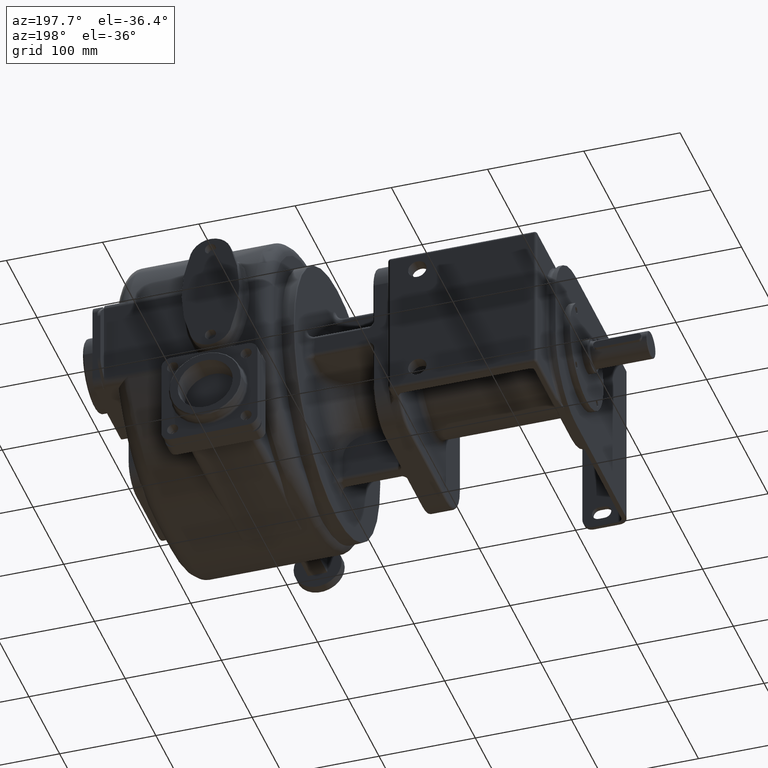
[diagram: clean part render]
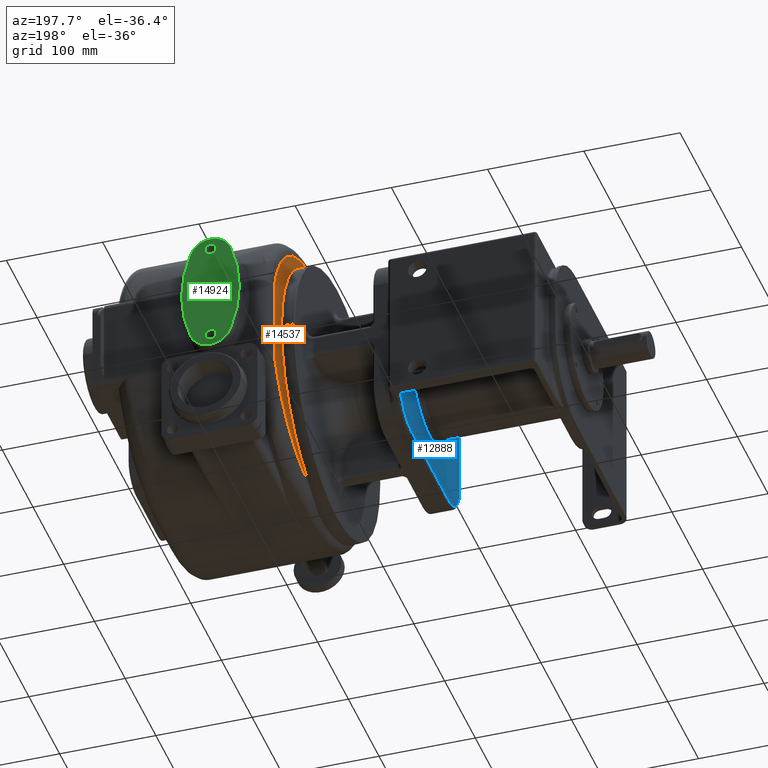
[diagram: same view with three faces highlighted in distinct colors, each labeled with its STEP entity id]
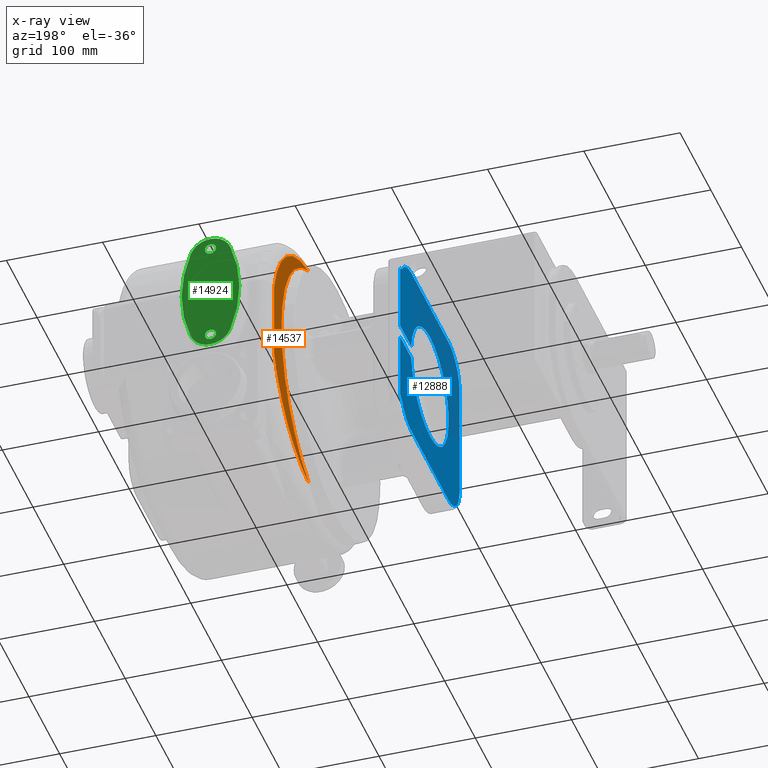
[diagram: x-ray of the same camera — body ghosted, the three highlighted faces saturated]
A machine part, auxiliary view with three faces highlighted in distinct colors.
The next image is the same camera in x-ray (body ghosted, the three faces saturated) — at least one of them is partly hidden behind the body in this view.
Their STEP definitions:

[orange] entity #14537 — the highlighted planar face has unit normal (1, 0, 0).
#2199=CARTESIAN_POINT('',(-5.5E1,1.5E2,0.E0));
#2200=DIRECTION('',(-1.E0,0.E0,0.E0));
#2201=DIRECTION('',(0.E0,3.789755434408E-1,9.254066876102E-1));
#2202=AXIS2_PLACEMENT_3D('',#2199,#2200,#2201);
#2204=CARTESIAN_POINT('',(-5.5E1,1.5E2,0.E0));
#2205=DIRECTION('',(-1.E0,0.E0,0.E0));
#2206=DIRECTION('',(0.E0,1.E0,0.E0));
#2207=AXIS2_PLACEMENT_3D('',#2204,#2205,#2206);
#2209=CARTESIAN_POINT('',(-5.5E1,1.935088238347E2,0.E0));
#2210=DIRECTION('',(-1.E0,0.E0,0.E0));
#2211=DIRECTION('',(0.E0,9.233049313065E-1,-3.840677073447E-1));
#2212=AXIS2_PLACEMENT_3D('',#2209,#2210,#2211);
#2214=DIRECTION('',(0.E0,8.685984680238E-12,-1.E0));
#2215=VECTOR('',#2214,8.177063911726E1);
#2216=CARTESIAN_POINT('',(-5.5E1,3.140000000005E2,3.164960389478E1));
#2217=LINE('',#2216,#2215);
#2218=CARTESIAN_POINT('',(-5.5E1,1.873961078411E2,0.E0));
#2219=DIRECTION('',(-1.E0,0.E0,0.E0));
#2220=DIRECTION('',(0.E0,1.200035880505E-1,9.927734579727E-1));
#2221=AXIS2_PLACEMENT_3D('',#2218,#2219,#2220);
#9249=CARTESIAN_POINT('',(-5.5E1,3.140000000005E2,3.164960389478E1));
#9250=CARTESIAN_POINT('',(-5.5E1,3.140000000012E2,-5.012103522249E1));
#9251=VERTEX_POINT('',#9249);
#9252=VERTEX_POINT('',#9250);
#9631=CARTESIAN_POINT('',(-5.5E1,2.030565760817E2,1.295569362654E2));
#9632=CARTESIAN_POINT('',(-5.5E1,2.9E2,-4.973797150321E-14));
#9633=VERTEX_POINT('',#9631);
#9634=VERTEX_POINT('',#9632);
#9635=CARTESIAN_POINT('',(-5.5E1,2.012857778968E2,-1.302680658700E2));
#9636=VERTEX_POINT('',#9635);
#14521=CARTESIAN_POINT('',(-5.5E1,1.5E2,0.E0));
#14522=DIRECTION('',(1.E0,0.E0,0.E0));
#14523=DIRECTION('',(0.E0,0.E0,1.E0));
#14524=AXIS2_PLACEMENT_3D('',#14521,#14522,#14523);
#14525=PLANE('',#14524);
#14527=ORIENTED_EDGE('',*,*,#14526,.T.);
#14528=ORIENTED_EDGE('',*,*,#14505,.T.);
#14530=ORIENTED_EDGE('',*,*,#14529,.F.);
#14532=ORIENTED_EDGE('',*,*,#14531,.F.);
#14534=ORIENTED_EDGE('',*,*,#14533,.F.);
#14535=EDGE_LOOP('',(#14527,#14528,#14530,#14532,#14534));
#14536=FACE_OUTER_BOUND('',#14535,.F.);
#14537=ADVANCED_FACE('',(#14536),#14525,.F.);
#2203=CIRCLE('',#2202,1.4E2);
#2208=CIRCLE('',#2207,1.4E2);
#2213=CIRCLE('',#2212,1.305E2);
#2222=CIRCLE('',#2221,1.305E2);
#14505=EDGE_CURVE('',#9634,#9636,#2208,.T.);
#14526=EDGE_CURVE('',#9633,#9634,#2203,.T.);
#14529=EDGE_CURVE('',#9252,#9636,#2213,.T.);
#14531=EDGE_CURVE('',#9251,#9252,#2217,.T.);
#14533=EDGE_CURVE('',#9633,#9251,#2222,.T.);

[blue] entity #12888 — the highlighted planar face has unit normal (1, 0, 0).
#1175=DIRECTION('',(-6.578854630226E-11,-1.E0,0.E0));
#1176=VECTOR('',#1175,3.640297037011E1);
#1177=CARTESIAN_POINT('',(-1.645E2,2.47E2,-7.E0));
#1178=LINE('',#1177,#1176);
#1179=DIRECTION('',(6.578854630226E-11,1.E0,0.E0));
#1180=VECTOR('',#1179,3.640297037011E1);
#1181=CARTESIAN_POINT('',(-1.645000000024E2,2.105970296299E2,7.E0));
#1182=LINE('',#1181,#1180);
#1183=DIRECTION('',(-8.555937387140E-11,0.E0,1.E0));
#1184=VECTOR('',#1183,7.035088935933E1);
#1185=CARTESIAN_POINT('',(-1.645E2,2.47E2,7.E0));
#1186=LINE('',#1185,#1184);
#1187=CARTESIAN_POINT('',(-1.645E2,2.5E2,9.E1));
#1188=DIRECTION('',(1.E0,0.E0,0.E0));
#1189=DIRECTION('',(0.E0,-8.E-1,-6.E-1));
#1190=AXIS2_PLACEMENT_3D('',#1187,#1188,#1189);
#1192=CARTESIAN_POINT('',(-1.645E2,2.1E2,6.E1));
#1193=DIRECTION('',(-1.E0,0.E0,0.E0));
#1194=DIRECTION('',(0.E0,0.E0,1.E0));
#1195=AXIS2_PLACEMENT_3D('',#1192,#1193,#1194);
#1197=DIRECTION('',(0.E0,1.E0,0.E0));
#1198=VECTOR('',#1197,1.2E2);
#1199=CARTESIAN_POINT('',(-1.645E2,9.E1,9.7E1));
#1200=LINE('',#1199,#1198);
#1201=CARTESIAN_POINT('',(-1.645E2,9.E1,6.E1));
#1202=DIRECTION('',(-1.E0,0.E0,0.E0));
#1203=DIRECTION('',(0.E0,-1.E0,0.E0));
#1204=AXIS2_PLACEMENT_3D('',#1201,#1202,#1203);
#1206=DIRECTION('',(0.E0,0.E0,1.E0));
#1207=VECTOR('',#1206,1.2E2);
#1208=CARTESIAN_POINT('',(-1.645E2,5.3E1,-6.E1));
#1209=LINE('',#1208,#1207);
#1210=CARTESIAN_POINT('',(-1.645E2,9.E1,-6.E1));
#1211=DIRECTION('',(-1.E0,0.E0,0.E0));
#1212=DIRECTION('',(0.E0,0.E0,-1.E0));
#1213=AXIS2_PLACEMENT_3D('',#1210,#1211,#1212);
#1215=DIRECTION('',(0.E0,-1.E0,0.E0));
#1216=VECTOR('',#1215,1.2E2);
#1217=CARTESIAN_POINT('',(-1.645E2,2.1E2,-9.7E1));
#1218=LINE('',#1217,#1216);
#1219=CARTESIAN_POINT('',(-1.645E2,2.1E2,-6.E1));
#1220=DIRECTION('',(-1.E0,0.E0,0.E0));
#1221=DIRECTION('',(0.E0,8.E-1,-6.E-1));
#1222=AXIS2_PLACEMENT_3D('',#1219,#1220,#1221);
#1224=CARTESIAN_POINT('',(-1.645E2,2.5E2,-9.E1));
#1225=DIRECTION('',(1.E0,0.E0,0.E0));
#1226=DIRECTION('',(0.E0,-2.307692307692E-1,9.730085108210E-1));
#1227=AXIS2_PLACEMENT_3D('',#1224,#1225,#1226);
#1229=DIRECTION('',(8.531737829603E-11,0.E0,1.E0));
#1230=VECTOR('',#1229,7.035088935933E1);
#1231=CARTESIAN_POINT('',(-1.645000000060E2,2.47E2,-7.735088935933E1));
#1232=LINE('',#1231,#1230);
#8949=CARTESIAN_POINT('',(-1.645000000024E2,2.105970296299E2,7.E0));
#8951=CARTESIAN_POINT('',(-1.645E2,1.5E2,0.E0));
#8952=DIRECTION('',(1.E0,0.E0,0.E0));
#8953=DIRECTION('',(0.E0,9.933939283632E-1,1.147540983628E-1));
#8954=AXIS2_PLACEMENT_3D('',#8951,#8952,#8953);
#10233=CARTESIAN_POINT('',(-1.645E2,5.3E1,6.E1));
#10234=CARTESIAN_POINT('',(-1.645E2,9.E1,9.7E1));
#10235=VERTEX_POINT('',#10233);
#10236=VERTEX_POINT('',#10234);
#10241=CARTESIAN_POINT('',(-1.645E2,2.1E2,9.7E1));
#10242=VERTEX_POINT('',#10241);
#10245=CARTESIAN_POINT('',(-1.645E2,2.396E2,8.22E1));
#10246=VERTEX_POINT('',#10245);
#10249=CARTESIAN_POINT('',(-1.645E2,2.396E2,-8.22E1));
#10250=CARTESIAN_POINT('',(-1.645E2,2.1E2,-9.7E1));
#10251=VERTEX_POINT('',#10249);
#10252=VERTEX_POINT('',#10250);
#10257=CARTESIAN_POINT('',(-1.645E2,9.E1,-9.7E1));
#10258=VERTEX_POINT('',#10257);
#10261=CARTESIAN_POINT('',(-1.645E2,5.3E1,-6.E1));
#10262=VERTEX_POINT('',#10261);
#10313=CARTESIAN_POINT('',(-1.645E2,2.47E2,-7.735088935933E1));
#10314=VERTEX_POINT('',#10313);
#10317=CARTESIAN_POINT('',(-1.645E2,2.47E2,7.735088935933E1));
#10318=VERTEX_POINT('',#10317);
#10339=CARTESIAN_POINT('',(-1.645E2,2.47E2,-7.E0));
#10340=CARTESIAN_POINT('',(-1.645000000024E2,2.105970296299E2,-7.E0));
#10341=VERTEX_POINT('',#10339);
#10342=VERTEX_POINT('',#10340);
#10369=VERTEX_POINT('',#8949);
#10370=CARTESIAN_POINT('',(-1.645E2,2.47E2,7.E0));
#10371=VERTEX_POINT('',#10370);
#12855=CARTESIAN_POINT('',(-1.645E2,1.5E2,0.E0));
#12856=DIRECTION('',(1.E0,0.E0,0.E0));
#12857=DIRECTION('',(0.E0,0.E0,1.E0));
#12858=AXIS2_PLACEMENT_3D('',#12855,#12856,#12857);
#12859=PLANE('',#12858);
#12861=ORIENTED_EDGE('',*,*,#12860,.T.);
#12863=ORIENTED_EDGE('',*,*,#12862,.F.);
#12865=ORIENTED_EDGE('',*,*,#12864,.T.);
#12867=ORIENTED_EDGE('',*,*,#12866,.T.);
#12869=ORIENTED_EDGE('',*,*,#12868,.F.);
#12871=ORIENTED_EDGE('',*,*,#12870,.F.);
#12873=ORIENTED_EDGE('',*,*,#12872,.F.);
#12875=ORIENTED_EDGE('',*,*,#12874,.F.);
#12877=ORIENTED_EDGE('',*,*,#12876,.F.);
#12879=ORIENTED_EDGE('',*,*,#12878,.F.);
#12881=ORIENTED_EDGE('',*,*,#12880,.F.);
#12882=ORIENTED_EDGE('',*,*,#12845,.F.);
#12883=ORIENTED_EDGE('',*,*,#12835,.F.);
#12885=ORIENTED_EDGE('',*,*,#12884,.T.);
#12886=EDGE_LOOP('',(#12861,#12863,#12865,#12867,#12869,#12871,#12873,#12875,
#12877,#12879,#12881,#12882,#12883,#12885));
#12887=FACE_OUTER_BOUND('',#12886,.F.);
#12888=ADVANCED_FACE('',(#12887),#12859,.F.);
#1191=CIRCLE('',#1190,1.3E1);
#1196=CIRCLE('',#1195,3.7E1);
#1205=CIRCLE('',#1204,3.7E1);
#1214=CIRCLE('',#1213,3.7E1);
#1223=CIRCLE('',#1222,3.7E1);
#1228=CIRCLE('',#1227,1.3E1);
#8955=CIRCLE('',#8954,6.1E1);
#12835=EDGE_CURVE('',#10314,#10251,#1228,.T.);
#12845=EDGE_CURVE('',#10251,#10252,#1223,.T.);
#12860=EDGE_CURVE('',#10341,#10342,#1178,.T.);
#12862=EDGE_CURVE('',#10369,#10342,#8955,.T.);
#12864=EDGE_CURVE('',#10369,#10371,#1182,.T.);
#12866=EDGE_CURVE('',#10371,#10318,#1186,.T.);
#12868=EDGE_CURVE('',#10246,#10318,#1191,.T.);
#12870=EDGE_CURVE('',#10242,#10246,#1196,.T.);
#12872=EDGE_CURVE('',#10236,#10242,#1200,.T.);
#12874=EDGE_CURVE('',#10235,#10236,#1205,.T.);
#12876=EDGE_CURVE('',#10262,#10235,#1209,.T.);
#12878=EDGE_CURVE('',#10258,#10262,#1214,.T.);
#12880=EDGE_CURVE('',#10252,#10258,#1218,.T.);
#12884=EDGE_CURVE('',#10314,#10341,#1232,.T.);

[green] entity #14924 — the highlighted planar face has unit normal (0, 1, 0).
#2532=CARTESIAN_POINT('',(-1.1E2,3.49E2,1.399E1));
#2533=DIRECTION('',(0.E0,1.E0,0.E0));
#2534=DIRECTION('',(9.322095515959E-1,0.E0,3.619189852900E-1));
#2535=AXIS2_PLACEMENT_3D('',#2532,#2533,#2534);
#2537=CARTESIAN_POINT('',(0.E0,3.49E2,5.668528552457E1));
#2538=DIRECTION('',(0.E0,1.E0,0.E0));
#2539=DIRECTION('',(-9.320427750791E-1,0.E0,3.623482653786E-1));
#2540=AXIS2_PLACEMENT_3D('',#2537,#2538,#2539);
#2542=CARTESIAN_POINT('',(1.1E2,3.49E2,1.399E1));
#2543=DIRECTION('',(0.E0,1.E0,0.E0));
#2544=DIRECTION('',(-9.322496398259E-1,0.E0,-3.618157114394E-1));
#2545=AXIS2_PLACEMENT_3D('',#2542,#2543,#2544);
#2547=CARTESIAN_POINT('',(0.E0,3.49E2,-2.870528552457E1));
#2548=DIRECTION('',(0.E0,1.E0,0.E0));
#2549=DIRECTION('',(9.322979185720E-1,0.E0,-3.616912924391E-1));
#2550=AXIS2_PLACEMENT_3D('',#2547,#2548,#2549);
#2552=CARTESIAN_POINT('',(0.E0,3.49E2,-3.851E1));
#2553=DIRECTION('',(0.E0,1.E0,0.E0));
#2554=DIRECTION('',(0.E0,0.E0,-1.E0));
#2555=AXIS2_PLACEMENT_3D('',#2552,#2553,#2554);
#2557=CARTESIAN_POINT('',(0.E0,3.49E2,-3.851E1));
#2558=DIRECTION('',(0.E0,1.E0,0.E0));
#2559=DIRECTION('',(0.E0,0.E0,1.E0));
#2560=AXIS2_PLACEMENT_3D('',#2557,#2558,#2559);
#2562=CARTESIAN_POINT('',(0.E0,3.49E2,6.649E1));
#2563=DIRECTION('',(0.E0,-1.E0,0.E0));
#2564=DIRECTION('',(0.E0,0.E0,1.E0));
#2565=AXIS2_PLACEMENT_3D('',#2562,#2563,#2564);
#2567=CARTESIAN_POINT('',(0.E0,3.49E2,6.649E1));
#2568=DIRECTION('',(0.E0,-1.E0,0.E0));
#2569=DIRECTION('',(0.E0,0.E0,-1.E0));
#2570=AXIS2_PLACEMENT_3D('',#2567,#2568,#2569);
#9746=CARTESIAN_POINT('',(2.050933722343E1,3.49E2,6.465865794060E1));
#9747=CARTESIAN_POINT('',(2.051494957563E1,3.49E2,-3.666419960152E1));
#9748=VERTEX_POINT('',#9746);
#9749=VERTEX_POINT('',#9747);
#9750=CARTESIAN_POINT('',(-2.051494950422E1,3.49E2,-3.666419914294E1));
#9751=VERTEX_POINT('',#9750);
#9752=CARTESIAN_POINT('',(-2.050933722343E1,3.49E2,6.465865794060E1));
#9753=VERTEX_POINT('',#9752);
#9754=CARTESIAN_POINT('',(0.E0,3.49E2,-4.426E1));
#9755=CARTESIAN_POINT('',(0.E0,3.49E2,-3.276E1));
#9756=VERTEX_POINT('',#9754);
#9757=VERTEX_POINT('',#9755);
#9758=CARTESIAN_POINT('',(0.E0,3.49E2,7.224E1));
#9759=CARTESIAN_POINT('',(0.E0,3.49E2,6.074E1));
#9760=VERTEX_POINT('',#9758);
#9761=VERTEX_POINT('',#9759);
#14901=CARTESIAN_POINT('',(0.E0,3.49E2,1.399E1));
#14902=DIRECTION('',(0.E0,1.E0,0.E0));
#14903=DIRECTION('',(0.E0,0.E0,1.E0));
#14904=AXIS2_PLACEMENT_3D('',#14901,#14902,#14903);
#14905=PLANE('',#14904);
#14906=ORIENTED_EDGE('',*,*,#14871,.F.);
#14907=ORIENTED_EDGE('',*,*,#14889,.F.);
#14908=ORIENTED_EDGE('',*,*,#14833,.F.);
#14909=ORIENTED_EDGE('',*,*,#14852,.F.);
#14910=EDGE_LOOP('',(#14906,#14907,#14908,#14909));
#14911=FACE_OUTER_BOUND('',#14910,.F.);
#14913=ORIENTED_EDGE('',*,*,#14912,.T.);
#14915=ORIENTED_EDGE('',*,*,#14914,.T.);
#14916=EDGE_LOOP('',(#14913,#14915));
#14917=FACE_BOUND('',#14916,.F.);
#14919=ORIENTED_EDGE('',*,*,#14918,.F.);
#14921=ORIENTED_EDGE('',*,*,#14920,.F.);
#14922=EDGE_LOOP('',(#14919,#14921));
#14923=FACE_BOUND('',#14922,.F.);
#14924=ADVANCED_FACE('',(#14911,#14917,#14923),#14905,.T.);
#2536=CIRCLE('',#2535,1.4E2);
#2541=CIRCLE('',#2540,2.200471447543E1);
#2546=CIRCLE('',#2545,1.4E2);
#2551=CIRCLE('',#2550,2.200471447543E1);
#2556=CIRCLE('',#2555,5.75E0);
#2561=CIRCLE('',#2560,5.75E0);
#2566=CIRCLE('',#2565,5.75E0);
#2571=CIRCLE('',#2570,5.75E0);
#14833=EDGE_CURVE('',#9751,#9753,#2546,.T.);
#14852=EDGE_CURVE('',#9749,#9751,#2551,.T.);
#14871=EDGE_CURVE('',#9748,#9749,#2536,.T.);
#14889=EDGE_CURVE('',#9753,#9748,#2541,.T.);
#14912=EDGE_CURVE('',#9756,#9757,#2556,.T.);
#14914=EDGE_CURVE('',#9757,#9756,#2561,.T.);
#14918=EDGE_CURVE('',#9760,#9761,#2566,.T.);
#14920=EDGE_CURVE('',#9761,#9760,#2571,.T.);